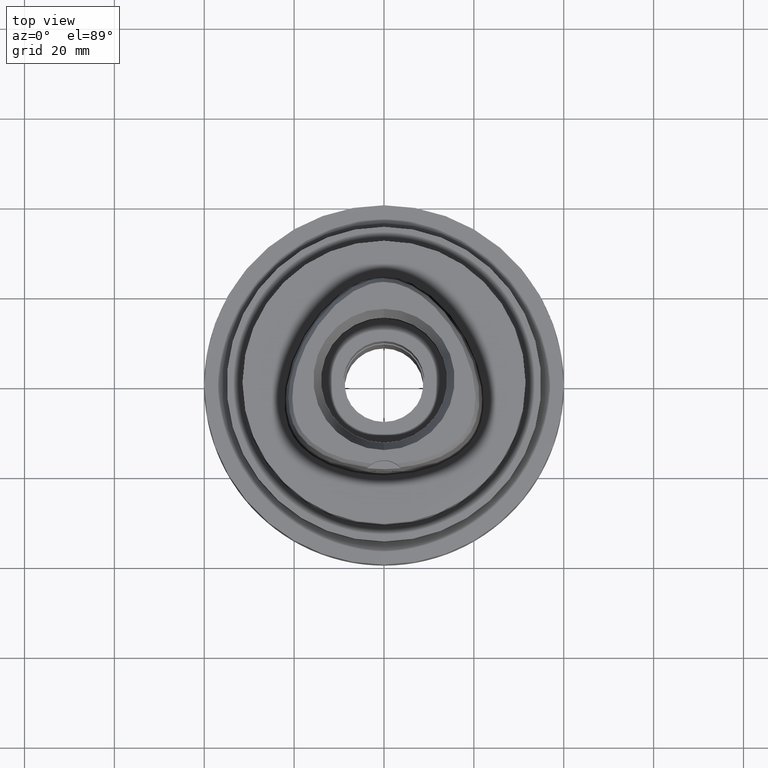
[diagram: clean part render]
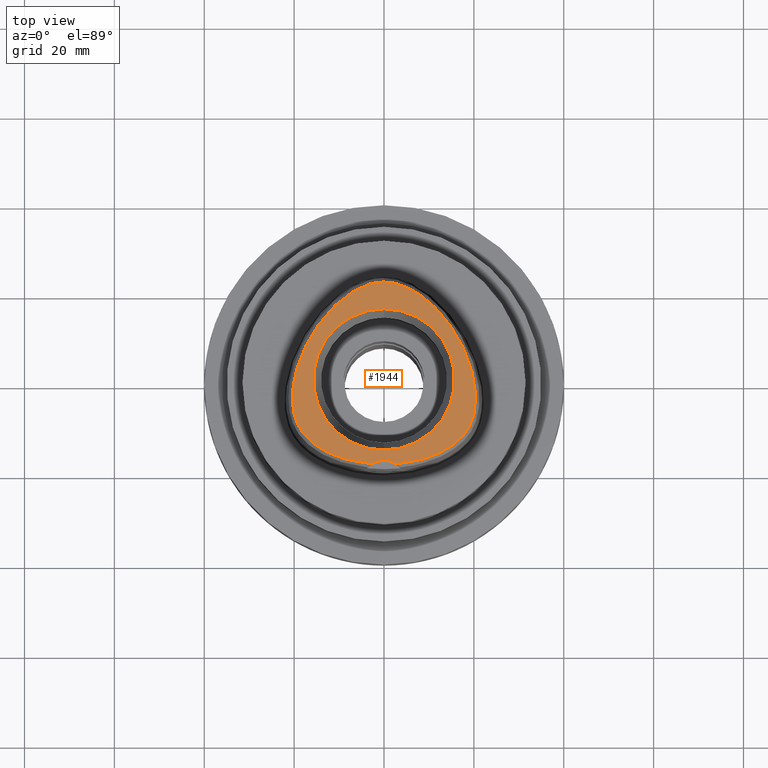
[diagram: same view with one face highlighted and labeled with its STEP entity id]
A machine part, top view. The second image highlights one B-rep face of the part: STEP entity #1944.
In plain terms, the highlighted planar face has unit normal (0, 0, 1).
Its self-contained STEP definition (entity closure, byte-faithful):
#17=CARTESIAN_POINT('',(0.E0,-2.3E1,3.8E1));
#18=DIRECTION('',(0.E0,0.E0,1.E0));
#19=DIRECTION('',(5.364574965210E-1,8.439273395420E-1,0.E0));
#20=AXIS2_PLACEMENT_3D('',#17,#18,#19);
#26=CARTESIAN_POINT('',(0.E0,-2.3E1,3.8E1));
#27=DIRECTION('',(0.E0,0.E0,1.E0));
#28=DIRECTION('',(0.E0,1.E0,0.E0));
#29=AXIS2_PLACEMENT_3D('',#26,#27,#28);
#34=CARTESIAN_POINT('',(-2.682279906005E0,-1.878035848610E1,3.8E1));
#35=CARTESIAN_POINT('',(-3.574152064244E0,-1.870897688047E1,3.8E1));
#36=CARTESIAN_POINT('',(-5.267041580162E0,-1.850249800115E1,3.8E1));
#37=CARTESIAN_POINT('',(-7.590498546390E0,-1.802936144106E1,3.8E1));
#38=CARTESIAN_POINT('',(-9.541479096825E0,-1.747261778782E1,3.8E1));
#39=CARTESIAN_POINT('',(-1.125047015292E1,-1.684847110756E1,3.8E1));
#40=CARTESIAN_POINT('',(-1.279387732024E1,-1.614816382230E1,3.8E1));
#41=CARTESIAN_POINT('',(-1.419420076700E1,-1.537134495756E1,3.8E1));
#42=CARTESIAN_POINT('',(-1.545970280774E1,-1.451519086475E1,3.8E1));
#43=CARTESIAN_POINT('',(-1.654651292576E1,-1.361672276455E1,3.8E1));
#44=CARTESIAN_POINT('',(-1.744706753690E1,-1.270842298762E1,3.8E1));
#45=CARTESIAN_POINT('',(-1.819236137956E1,-1.178623156067E1,3.8E1));
#46=CARTESIAN_POINT('',(-1.879906379625E1,-1.085290317842E1,3.8E1));
#47=CARTESIAN_POINT('',(-1.930428896202E1,-9.859811199117E0,3.8E1));
#48=CARTESIAN_POINT('',(-1.972959708710E1,-8.754662094323E0,3.8E1));
#49=CARTESIAN_POINT('',(-2.006591142868E1,-7.519836101872E0,3.8E1));
#50=CARTESIAN_POINT('',(-2.030070476372E1,-6.130862740482E0,3.8E1));
#51=CARTESIAN_POINT('',(-2.040958321186E1,-4.590992418190E0,3.8E1));
#52=CARTESIAN_POINT('',(-2.038106770496E1,-3.000247611746E0,3.8E1));
#53=CARTESIAN_POINT('',(-2.021577929107E1,-1.313852903246E0,3.8E1));
#54=CARTESIAN_POINT('',(-1.990119931619E1,4.798197914386E-1,3.8E1));
#55=CARTESIAN_POINT('',(-1.940591527333E1,2.450895015280E0,3.8E1));
#56=CARTESIAN_POINT('',(-1.865588892700E1,4.696181874745E0,3.8E1));
#57=CARTESIAN_POINT('',(-1.763093796968E1,7.095378743169E0,3.8E1));
#58=CARTESIAN_POINT('',(-1.639668083332E1,9.444027385306E0,3.8E1));
#59=CARTESIAN_POINT('',(-1.498058588736E1,1.169146522770E1,3.8E1));
#60=CARTESIAN_POINT('',(-1.342095694999E1,1.377629668178E1,3.8E1));
#61=CARTESIAN_POINT('',(-1.184925546704E1,1.555608098425E1,3.8E1));
#62=CARTESIAN_POINT('',(-1.038238365250E1,1.698056359474E1,3.8E1));
#63=CARTESIAN_POINT('',(-8.987609703910E0,1.815041417260E1,3.8E1));
#64=CARTESIAN_POINT('',(-7.613179357724E0,1.913713178029E1,3.8E1));
#65=CARTESIAN_POINT('',(-6.238778420660E0,1.996531449844E1,3.8E1));
#66=CARTESIAN_POINT('',(-4.860901248957E0,2.063759728215E1,3.8E1));
#67=CARTESIAN_POINT('',(-3.532745960286E0,2.113394576523E1,3.8E1));
#68=CARTESIAN_POINT('',(-2.292521707177E0,2.146152216470E1,3.8E1));
#69=CARTESIAN_POINT('',(-1.122523078773E0,2.164736410453E1,3.8E1));
#70=CARTESIAN_POINT('',(-3.686699489800E-1,2.168728795389E1,3.8E1));
#71=CARTESIAN_POINT('',(-3.470663397233E-11,2.168728795390E1,3.8E1));
#76=CARTESIAN_POINT('',(-3.470663397233E-11,2.168728795390E1,3.8E1));
#77=CARTESIAN_POINT('',(3.682416732949E-1,2.168728795390E1,3.8E1));
#78=CARTESIAN_POINT('',(1.121470265838E0,2.164744335770E1,3.8E1));
#79=CARTESIAN_POINT('',(2.291129699961E0,2.146187112228E1,3.8E1));
#80=CARTESIAN_POINT('',(3.531910114825E0,2.113406090293E1,3.8E1));
#81=CARTESIAN_POINT('',(4.853391294025E0,2.064071273410E1,3.8E1));
#82=CARTESIAN_POINT('',(6.231485452495E0,1.996920960336E1,3.8E1));
#83=CARTESIAN_POINT('',(7.601478615986E0,1.914480595218E1,3.8E1));
#84=CARTESIAN_POINT('',(8.979470441687E0,1.815688507981E1,3.8E1));
#85=CARTESIAN_POINT('',(1.037298974017E1,1.698877316135E1,3.8E1));
#86=CARTESIAN_POINT('',(1.183674165008E1,1.556954401683E1,3.8E1));
#87=CARTESIAN_POINT('',(1.342041236878E1,1.377743085712E1,3.8E1));
#88=CARTESIAN_POINT('',(1.497849286234E1,1.169417573352E1,3.8E1));
#89=CARTESIAN_POINT('',(1.639422389974E1,9.448613267825E0,3.8E1));
#90=CARTESIAN_POINT('',(1.763180942687E1,7.093485364622E0,3.8E1));
#91=CARTESIAN_POINT('',(1.865236467690E1,4.704410180173E0,3.8E1));
#92=CARTESIAN_POINT('',(1.940183880320E1,2.465146612434E0,3.8E1));
#93=CARTESIAN_POINT('',(1.990054078118E1,4.839815455858E-1,3.8E1));
#94=CARTESIAN_POINT('',(2.021537034454E1,-1.311693729572E0,3.8E1));
#95=CARTESIAN_POINT('',(2.038109659588E1,-2.996639648989E0,3.8E1));
#96=CARTESIAN_POINT('',(2.040943961754E1,-4.600170074456E0,3.8E1));
#97=CARTESIAN_POINT('',(2.030036960080E1,-6.132510603146E0,3.8E1));
#98=CARTESIAN_POINT('',(2.006500271046E1,-7.524379448685E0,3.8E1));
#99=CARTESIAN_POINT('',(1.972842167065E1,-8.758461863331E0,3.8E1));
#100=CARTESIAN_POINT('',(1.930131572798E1,-9.866430213715E0,3.8E1));
#101=CARTESIAN_POINT('',(1.879849116811E1,-1.085335403523E1,3.8E1));
#102=CARTESIAN_POINT('',(1.819421272394E1,-1.178371895707E1,3.8E1));
#103=CARTESIAN_POINT('',(1.744732935025E1,-1.270827876200E1,3.8E1));
#104=CARTESIAN_POINT('',(1.654593975162E1,-1.361722669647E1,3.8E1));
#105=CARTESIAN_POINT('',(1.545841561694E1,-1.451633661527E1,3.8E1));
#106=CARTESIAN_POINT('',(1.418824633246E1,-1.537496763034E1,3.8E1));
#107=CARTESIAN_POINT('',(1.279089113235E1,-1.614972232164E1,3.8E1));
#108=CARTESIAN_POINT('',(1.124268485920E1,-1.685149967478E1,3.8E1));
#109=CARTESIAN_POINT('',(9.546242123495E0,-1.747089792596E1,3.8E1));
#110=CARTESIAN_POINT('',(7.591059174669E0,-1.802939975827E1,3.8E1));
#111=CARTESIAN_POINT('',(5.265617794188E0,-1.850271655659E1,3.8E1));
#112=CARTESIAN_POINT('',(3.573372622911E0,-1.870903402336E1,3.8E1));
#113=CARTESIAN_POINT('',(2.682287482607E0,-1.878036330229E1,3.8E1));
#118=CARTESIAN_POINT('',(0.E0,0.E0,3.8E1));
#119=DIRECTION('',(0.E0,0.E0,1.E0));
#120=DIRECTION('',(0.E0,1.E0,0.E0));
#121=AXIS2_PLACEMENT_3D('',#118,#119,#120);
#126=CARTESIAN_POINT('',(0.E0,0.E0,3.8E1));
#127=DIRECTION('',(0.E0,0.E0,1.E0));
#128=DIRECTION('',(0.E0,-1.E0,0.E0));
#129=AXIS2_PLACEMENT_3D('',#126,#127,#128);
#1712=CARTESIAN_POINT('',(0.E0,-1.8E1,3.8E1));
#1713=CARTESIAN_POINT('',(-2.682279906007E0,-1.878035848610E1,3.8E1));
#1714=VERTEX_POINT('',#1712);
#1715=VERTEX_POINT('',#1713);
#1716=CARTESIAN_POINT('',(2.682287482605E0,-1.878036330229E1,3.8E1));
#1717=VERTEX_POINT('',#1716);
#1718=VERTEX_POINT('',#71);
#1719=CARTESIAN_POINT('',(0.E0,1.571487483156E1,3.8E1));
#1720=CARTESIAN_POINT('',(0.E0,-1.571487483156E1,3.8E1));
#1721=VERTEX_POINT('',#1719);
#1722=VERTEX_POINT('',#1720);
#1923=CARTESIAN_POINT('',(0.E0,0.E0,3.8E1));
#1924=DIRECTION('',(0.E0,0.E0,1.E0));
#1925=DIRECTION('',(0.E0,1.E0,0.E0));
#1926=AXIS2_PLACEMENT_3D('',#1923,#1924,#1925);
#1927=PLANE('',#1926);
#1929=ORIENTED_EDGE('',*,*,#1928,.T.);
#1931=ORIENTED_EDGE('',*,*,#1930,.T.);
#1933=ORIENTED_EDGE('',*,*,#1932,.T.);
#1935=ORIENTED_EDGE('',*,*,#1934,.T.);
#1936=EDGE_LOOP('',(#1929,#1931,#1933,#1935));
#1937=FACE_OUTER_BOUND('',#1936,.F.);
#1939=ORIENTED_EDGE('',*,*,#1938,.T.);
#1941=ORIENTED_EDGE('',*,*,#1940,.T.);
#1942=EDGE_LOOP('',(#1939,#1941));
#1943=FACE_BOUND('',#1942,.F.);
#21=CIRCLE('',#20,5.E0);
#30=CIRCLE('',#29,5.E0);
#72=B_SPLINE_CURVE_WITH_KNOTS('',3,(#34,#35,#36,#37,#38,#39,#40,#41,#42,#43,#44,
#45,#46,#47,#48,#49,#50,#51,#52,#53,#54,#55,#56,#57,#58,#59,#60,#61,#62,#63,#64,
#65,#66,#67,#68,#69,#70,#71),.UNSPECIFIED.,.F.,.F.,(4,1,1,1,1,1,1,1,1,1,1,1,1,1,
1,1,1,1,1,1,1,1,1,1,1,1,1,1,1,1,1,1,1,1,1,4),(0.E0,2.857142857143E-2,
5.714285714286E-2,8.571428571429E-2,1.142857142857E-1,1.428571428571E-1,
1.714285714286E-1,2.E-1,2.285714285714E-1,2.571428571429E-1,2.857142857143E-1,
3.142857142857E-1,3.428571428571E-1,3.714285714286E-1,4.E-1,4.285714285714E-1,
4.571428571429E-1,4.857142857143E-1,5.142857142857E-1,5.428571428571E-1,
5.714285714286E-1,6.E-1,6.285714285714E-1,6.571428571429E-1,6.857142857143E-1,
7.142857142857E-1,7.428571428571E-1,7.714285714286E-1,8.E-1,8.285714285714E-1,
8.571428571429E-1,8.857142857143E-1,9.142857142857E-1,9.428571428571E-1,
9.714285714286E-1,1.E0),.UNSPECIFIED.);
#114=B_SPLINE_CURVE_WITH_KNOTS('',3,(#76,#77,#78,#79,#80,#81,#82,#83,#84,#85,
#86,#87,#88,#89,#90,#91,#92,#93,#94,#95,#96,#97,#98,#99,#100,#101,#102,#103,
#104,#105,#106,#107,#108,#109,#110,#111,#112,#113),.UNSPECIFIED.,.F.,.F.,(4,1,1,
1,1,1,1,1,1,1,1,1,1,1,1,1,1,1,1,1,1,1,1,1,1,1,1,1,1,1,1,1,1,1,1,4),(0.E0,
2.857142857143E-2,5.714285714286E-2,8.571428571429E-2,1.142857142857E-1,
1.428571428571E-1,1.714285714286E-1,2.E-1,2.285714285714E-1,2.571428571429E-1,
2.857142857143E-1,3.142857142857E-1,3.428571428571E-1,3.714285714286E-1,4.E-1,
4.285714285714E-1,4.571428571429E-1,4.857142857143E-1,5.142857142857E-1,
5.428571428571E-1,5.714285714286E-1,6.E-1,6.285714285714E-1,6.571428571429E-1,
6.857142857143E-1,7.142857142857E-1,7.428571428571E-1,7.714285714286E-1,8.E-1,
8.285714285714E-1,8.571428571429E-1,8.857142857143E-1,9.142857142857E-1,
9.428571428571E-1,9.714285714286E-1,1.E0),.UNSPECIFIED.);
#122=CIRCLE('',#121,1.571487483156E1);
#130=CIRCLE('',#129,1.571487483156E1);
#1928=EDGE_CURVE('',#1717,#1714,#21,.T.);
#1930=EDGE_CURVE('',#1714,#1715,#30,.T.);
#1932=EDGE_CURVE('',#1715,#1718,#72,.T.);
#1934=EDGE_CURVE('',#1718,#1717,#114,.T.);
#1938=EDGE_CURVE('',#1721,#1722,#122,.T.);
#1940=EDGE_CURVE('',#1722,#1721,#130,.T.);
#1944=ADVANCED_FACE('',(#1937,#1943),#1927,.T.);